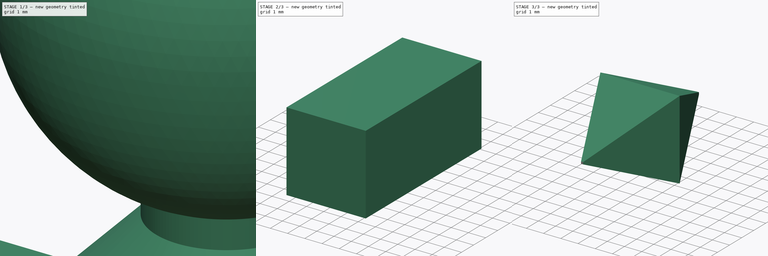
[diagram: build sequence overview — one tinted view per stage of 3, left to right]
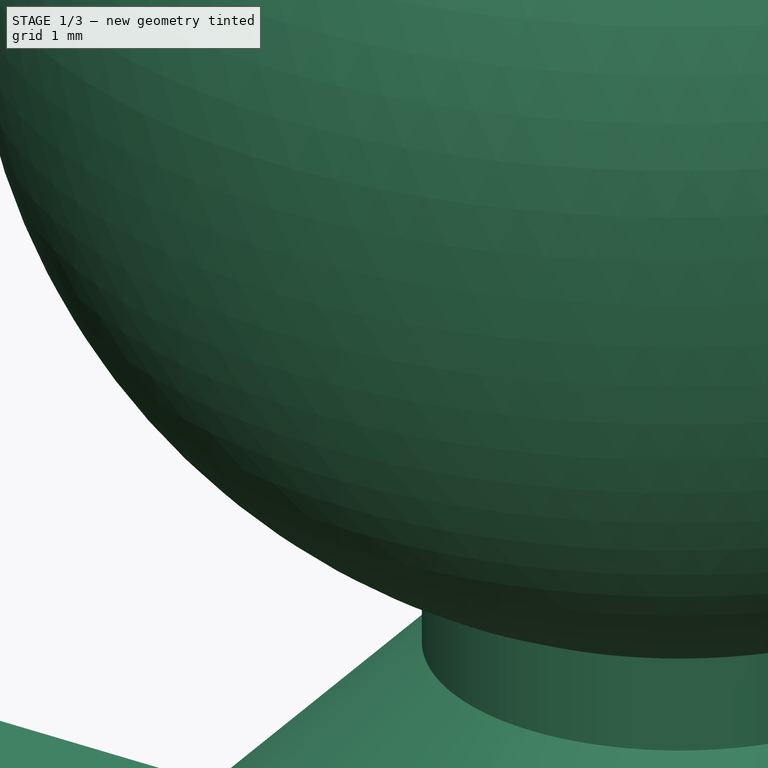
[diagram: stage 1 of 3 — iso view after this stage's code; geometry added in this stage tinted green]
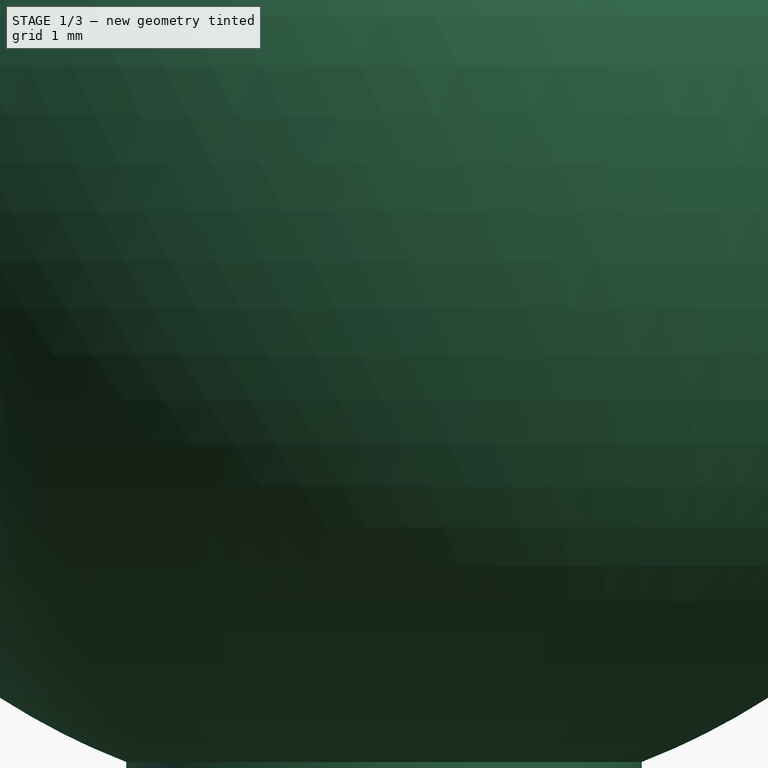
[diagram: stage 1 of 3 — front view after this stage's code; geometry added in this stage tinted green]
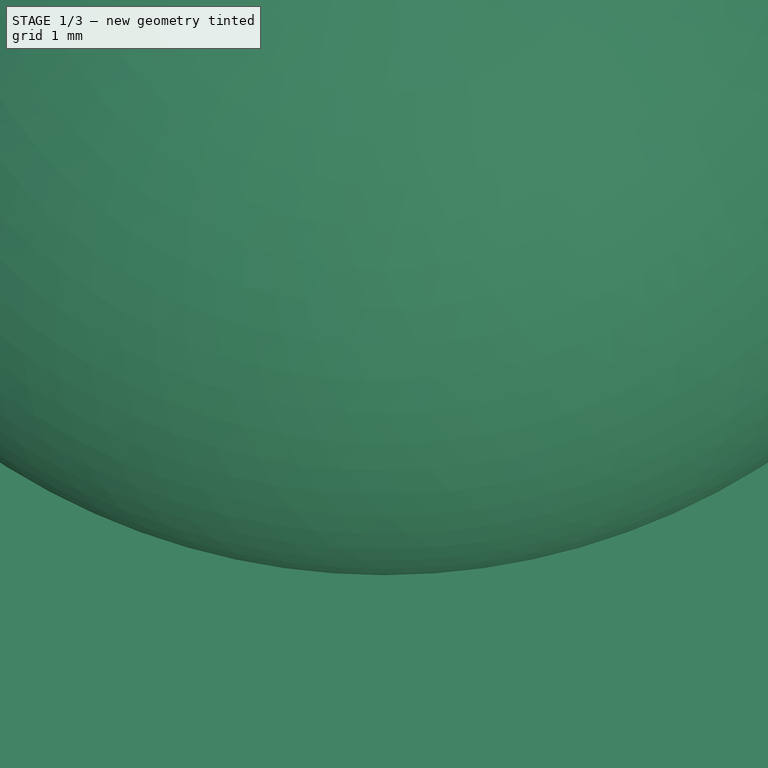
[diagram: stage 1 of 3 — top view after this stage's code; geometry added in this stage tinted green]
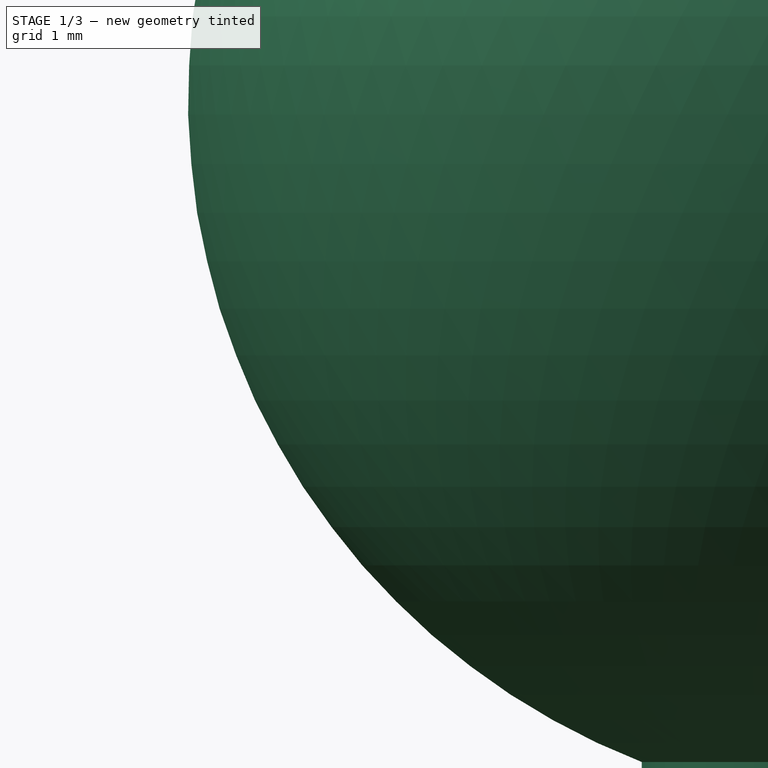
[diagram: stage 1 of 3 — right view after this stage's code; geometry added in this stage tinted green]
FCSTD DOCUMENT  (FreeCAD 1.0R39285 (Git))
Label: tripod_extension_locators
License: CERN Open Hardware Licence permissive
LicenseURL: https://cern-ohl.web.cern.ch/
objects: Sketcher::SketchObject×3, PartDesign::Draft×3, PartDesign::Body×2, PartDesign::Revolution×1, PartDesign::Pocket×1, PartDesign::SubShapeBinder×1, PartDesign::Pad×1, PartDesign::Mirrored×1
note: 29 computed .brp shape members not serialized (recipe doc carries the construction recipe); baked Part::Feature solids carry a one-line shape summary decoded from their .brp

FEATURE [Sketcher::SketchObject] Sketch
  ArcFitTolerance = 1e-06
  AttachmentSupport = -> [XZ_Plane]
  FullyConstrained = true
  MakeInternals = false
  MapMode = 5
  Placement = pos=(0,0,0) rot=(1,0,0;1.5708rad)
  sketch-geometry (11):
    g0: ArcOfCircle CenterX=0 CenterY=24.8623 CenterZ=0 NormalX=0 NormalY=0 NormalZ=1 AngleXU=0 Radius=13.8 StartAngle=1.5708 EndAngle=4.34163
    g1: LineSegment StartX=-5 StartY=12 StartZ=0 EndX=-5 EndY=10 EndZ=0
    g2: LineSegment StartX=-11 StartY=4 StartZ=0 EndX=-20 EndY=4 EndZ=0
    g3: LineSegment StartX=-20 StartY=4 StartZ=0 EndX=-20 EndY=0 EndZ=0
    g4: LineSegment StartX=-20 StartY=0 StartZ=0 EndX=0 EndY=0 EndZ=0
    g5: LineSegment StartX=8e-16 StartY=0 StartZ=0 EndX=8e-16 EndY=11.0623 EndZ=0
    g6: LineSegment StartX=8e-16 StartY=11.0623 StartZ=0 EndX=8e-16 EndY=38.6623 EndZ=0
    g7: ArcOfCircle [constr] CenterX=0 CenterY=24.8623 CenterZ=0 NormalX=0 NormalY=0 NormalZ=1 AngleXU=0 Radius=13.8 StartAngle=4.34163 EndAngle=4.71239
    g8: ArcOfCircle [constr] CenterX=-11 CenterY=10 CenterZ=0 NormalX=0 NormalY=0 NormalZ=1 AngleXU=0 Radius=6 StartAngle=4.71239 EndAngle=6.28319
    g9: GeomPoint [constr] X=-5 Y=4 Z=0
    g10: LineSegment StartX=-11 StartY=4 StartZ=0 EndX=-5 EndY=10 EndZ=0
  constraints (29):
    c: Diameter(g0) = 27.6
    c: PointOnObject(g0,g-2)
    c: Vertical(g1)
    c: Horizontal(g2)
    c: Coincident(g2,g3)
    c: Vertical(g3)
    c: Coincident(g3,g4)
    c: Horizontal(g4)
    c: Coincident(g4,g5)
    c: Vertical(g5)
    c: Coincident(g5,g6)
    c: Vertical(g6)
    c: Coincident(g0,g6)
    c: Coincident(g0,g1)
    c: DistanceY(g9,g1) = 8
    c: DistanceX(g0,g-1) = 5
    c: Distance(g3,g3) = 4
    c: Coincident(g7,g0)
    c: Coincident(g7,g5)
    c: Coincident(g7,g0)
    c: Coincident(g4,g-1)
    c: DistanceX(g4,g4) = 20
    c: PointOnObject(g9,g1)
    c: PointOnObject(g9,g2)
    c: Tangent(g1,g8) = 1.5708
    c: Tangent(g2,g8) = 1.5708
    c: Coincident(g10,g1)
    c: Coincident(g10,g2)
    c: Radius(g8) = 6
FEATURE [PartDesign::Revolution] Revolution
  Angle = 180
  Angle2 = 60
  Axis = (0,2e-16,1)
  Base = (0,0,0)
  Placement = pos=(0,0,0) rot=(1,0,0;1.5708rad)
  Profile = -> Sketch
  ReferenceAxis = -> Sketch [V_Axis]
  Refine = true
  Suppressed = false
  Type = 0
FEATURE [Sketcher::SketchObject] Sketch001
  ArcFitTolerance = 1e-06
  AttachmentSupport = -> [Revolution]
  ExternalGeometry = -> [Revolution]
  FullyConstrained = true
  MakeInternals = false
  MapMode = 5
  Placement = pos=(0,-7e-16,0) rot=(-1,0,0;1.5708rad)
  sketch-geometry (10):
    g0: LineSegment StartX=-2.5 StartY=-27.3623 StartZ=0 EndX=2.5 EndY=-27.3623 EndZ=0
    g1: LineSegment StartX=2.5 StartY=-27.3623 StartZ=0 EndX=2.5 EndY=-22.3623 EndZ=0
    g2: LineSegment StartX=2.5 StartY=-22.3623 StartZ=0 EndX=-2.5 EndY=-22.3623 EndZ=0
    g3: LineSegment StartX=-2.5 StartY=-22.3623 StartZ=0 EndX=-2.5 EndY=-27.3623 EndZ=0
    g4: GeomPoint [constr] X=0 Y=-24.8623 Z=0
    g5: LineSegment StartX=-2.5 StartY=-9 StartZ=0 EndX=2.5 EndY=-9 EndZ=0
    g6: LineSegment StartX=2.5 StartY=-9 StartZ=0 EndX=2.5 EndY=-4 EndZ=0
    g7: LineSegment StartX=2.5 StartY=-4 StartZ=0 EndX=-2.5 EndY=-4 EndZ=0
    g8: LineSegment StartX=-2.5 StartY=-4 StartZ=0 EndX=-2.5 EndY=-9 EndZ=0
    g9: GeomPoint [constr] X=0 Y=-6.5 Z=0
  constraints (25):
    c: Coincident(g0,g1)
    c: Coincident(g1,g2)
    c: Coincident(g2,g3)
    c: Coincident(g3,g0)
    c: Horizontal(g0)
    c: Horizontal(g2)
    c: Vertical(g1)
    c: Vertical(g3)
    c: Symmetric(g2,g0,g4)
    c: Coincident(g5,g6)
    c: Coincident(g6,g7)
    c: Coincident(g7,g8)
    c: Coincident(g8,g5)
    c: Horizontal(g5)
    c: Horizontal(g7)
    c: Vertical(g6)
    c: Vertical(g8)
    c: Symmetric(g7,g5,g9)
    c: Distance(g5,g7) = 5
    c: PointOnObject(g9,g-2)
    c: Equal(g8,g5)
    c: Equal(g3,g0)
    c: Equal(g3,g8)
    c: Coincident(g-3,g4)
    c: Horizontal(g7,g-4)
FEATURE [PartDesign::Pocket] Pocket
  BaseFeature = -> Revolution
  Direction = (0,-1,-2e-16)
  Length = 5
  Length2 = 5
  Placement = pos=(0,0,0) rot=(1,0,0;1.5708rad)
  Profile = -> Sketch001
  ReferenceAxis = -> Sketch001 [N_Axis]
  Refine = true
  Suppressed = false
  Type = 0
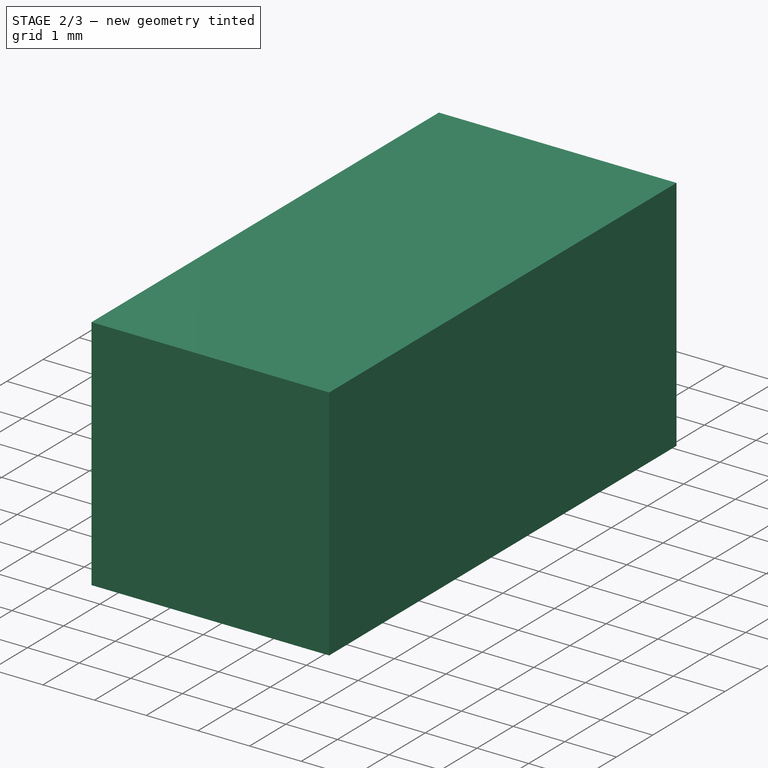
[diagram: stage 2 of 3 — iso view after this stage's code; geometry added in this stage tinted green]
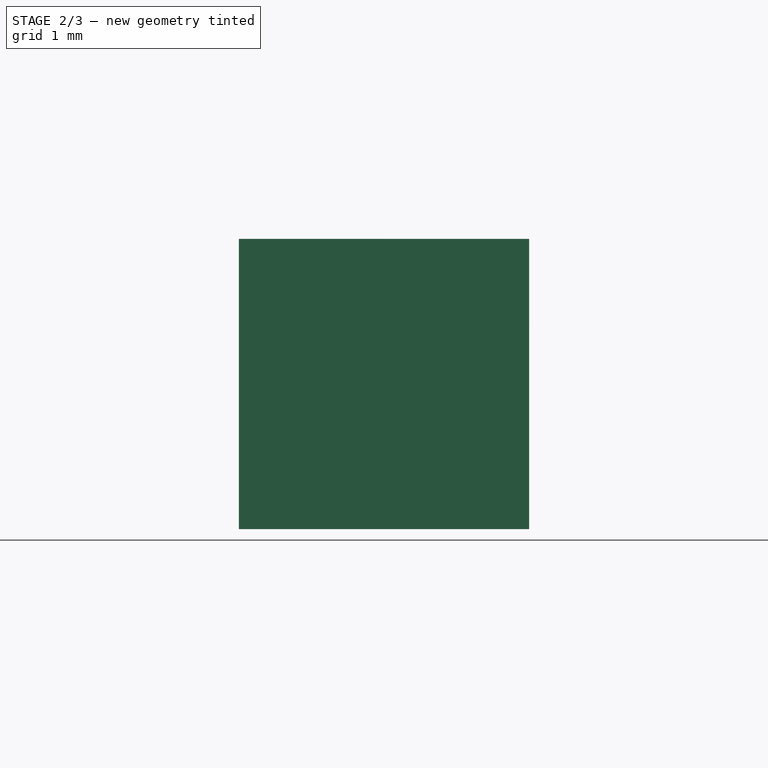
[diagram: stage 2 of 3 — front view after this stage's code; geometry added in this stage tinted green]
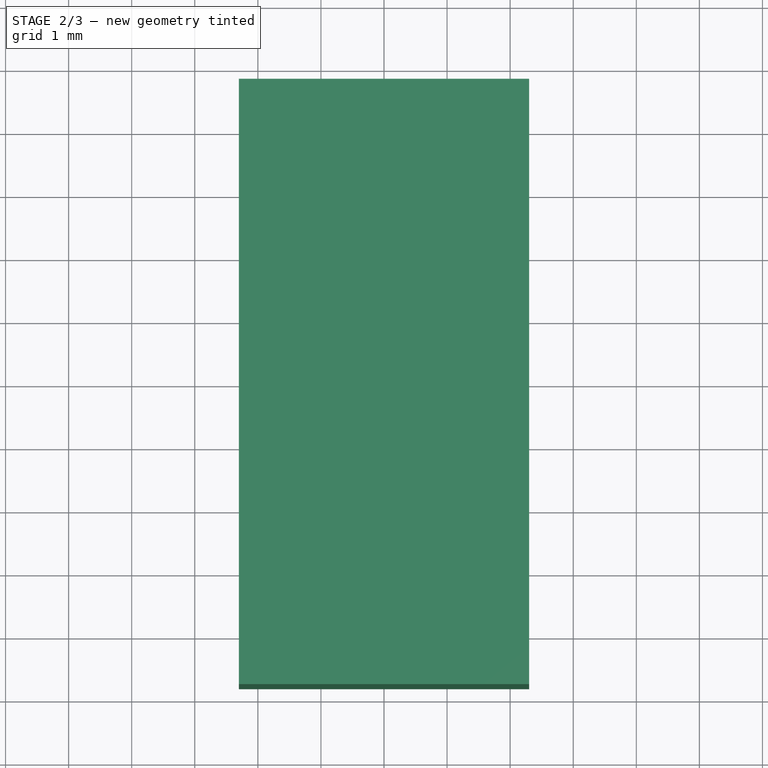
[diagram: stage 2 of 3 — top view after this stage's code; geometry added in this stage tinted green]
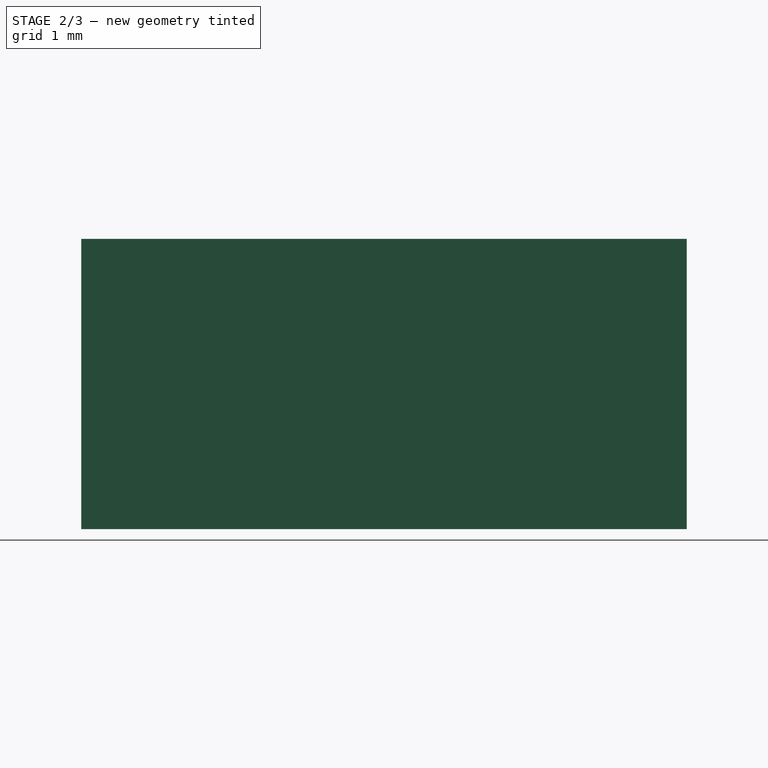
[diagram: stage 2 of 3 — right view after this stage's code; geometry added in this stage tinted green]
FEATURE [PartDesign::Draft] Draft
  Angle = 25
  Base = -> Pocket [Face12,Face13,Face14,Face15,Face8,Face9,Face11,Face10]
  BaseFeature = -> Pocket
  NeutralPlane = -> Pocket [Face4]
  Placement = pos=(0,0,0) rot=(1,0,0;1.5708rad)
  Refine = true
  SupportTransform = false
  Suppressed = false
FEATURE [PartDesign::Body] Body
  AllowCompound = false
  Group = -> [Sketch,Revolution,Sketch001,Pocket,Draft]
  Origin = -> Origin
  Tip = -> Draft
FEATURE [PartDesign::SubShapeBinder] Binder
  BindCopyOnChange = 0
  BindMode = 0
  ClaimChildren = false
  Context = -> Body001 [Binder.]
  Fuse = false
  MakeFace = true
  OffsetFill = false
  OffsetIntersection = false
  OffsetJoinType = 0
  OffsetOpenResult = false
  PartialLoad = false
  Refine = true
  Relative = true
  Support = -> [Body]
  _Version = 2
FEATURE [Sketcher::SketchObject] Sketch002
  ArcFitTolerance = 1e-06
  AttachmentSupport = -> [Binder]
  ExternalGeometry = -> [Binder]
  FullyConstrained = true
  MakeInternals = false
  MapMode = 5
  Placement = pos=(0,-7e-16,0) rot=(0,0.707107,0.707107;3.14159rad)
  sketch-geometry (7):
    g0: LineSegment StartX=2.3 StartY=22.5623 StartZ=0 EndX=2.3 EndY=27.1623 EndZ=0
    g1: LineSegment StartX=2.3 StartY=27.1623 StartZ=0 EndX=-2.3 EndY=27.1623 EndZ=0
    g2: LineSegment StartX=-2.3 StartY=27.1623 StartZ=0 EndX=-2.3 EndY=22.5623 EndZ=0
    g3: LineSegment StartX=-2.3 StartY=22.5623 StartZ=0 EndX=2.3 EndY=22.5623 EndZ=0
    g4: GeomPoint [constr] X=0 Y=24.8623 Z=0
    g5: LineSegment [constr] StartX=-2.3 StartY=27.1623 StartZ=0 EndX=-2.3 EndY=27.3623 EndZ=0
    g6: LineSegment [constr] StartX=-2.3 StartY=27.1623 StartZ=0 EndX=-2.5 EndY=27.1623 EndZ=0
  constraints (19):
    c: Coincident(g0,g1)
    c: Coincident(g1,g2)
    c: Coincident(g2,g3)
    c: Coincident(g3,g0)
    c: Vertical(g0)
    c: Vertical(g2)
    c: Horizontal(g1)
    c: Horizontal(g3)
    c: Symmetric(g2,g0,g4)
    c: PointOnObject(g4,g-2)
    c: Equal(g1,g2)
    c: Coincident(g5,g1)
    c: PointOnObject(g5,g-3)
    c: Vertical(g5)
    c: Coincident(g6,g1)
    c: Horizontal(g6)
    c: PointOnObject(g6,g-5)
    c: Equal(g6,g5)
    c: DistanceY(g5,g5) = 0.2
FEATURE [PartDesign::Pad] Pad
  Direction = (0,1,-2e-16)
  Length = 4.8
  Length2 = 10
  Profile = -> Sketch002
  ReferenceAxis = -> Sketch002 [N_Axis]
  Refine = true
  Reversed = true
  Suppressed = false
  Type = 0
FEATURE [PartDesign::Mirrored] Mirrored
  BaseFeature = -> Pad
  MirrorPlane = -> XZ_Plane001
  Originals = -> [Pad]
  Suppressed = false
  TransformMode = 0
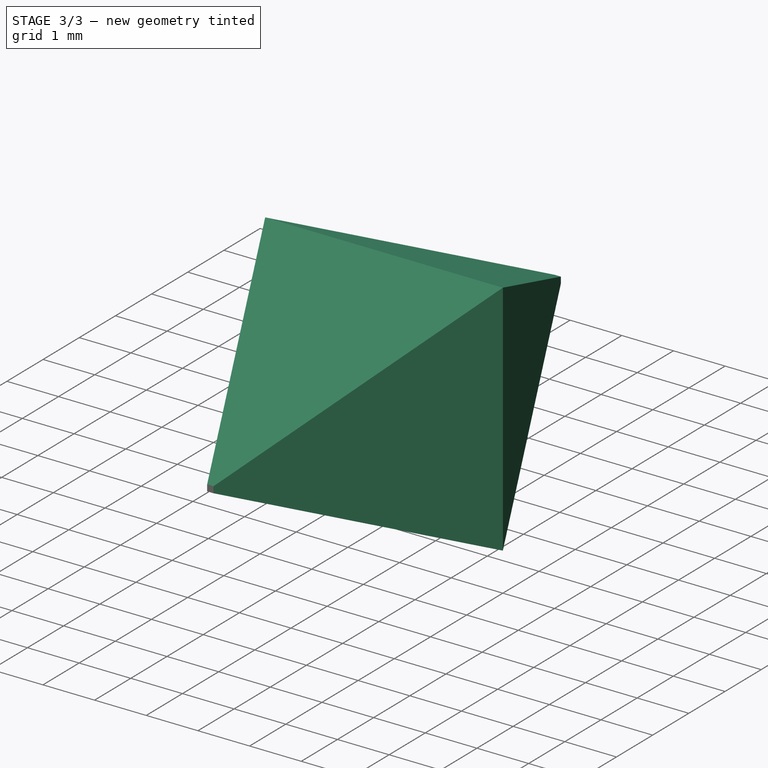
[diagram: stage 3 of 3 — iso view after this stage's code; geometry added in this stage tinted green]
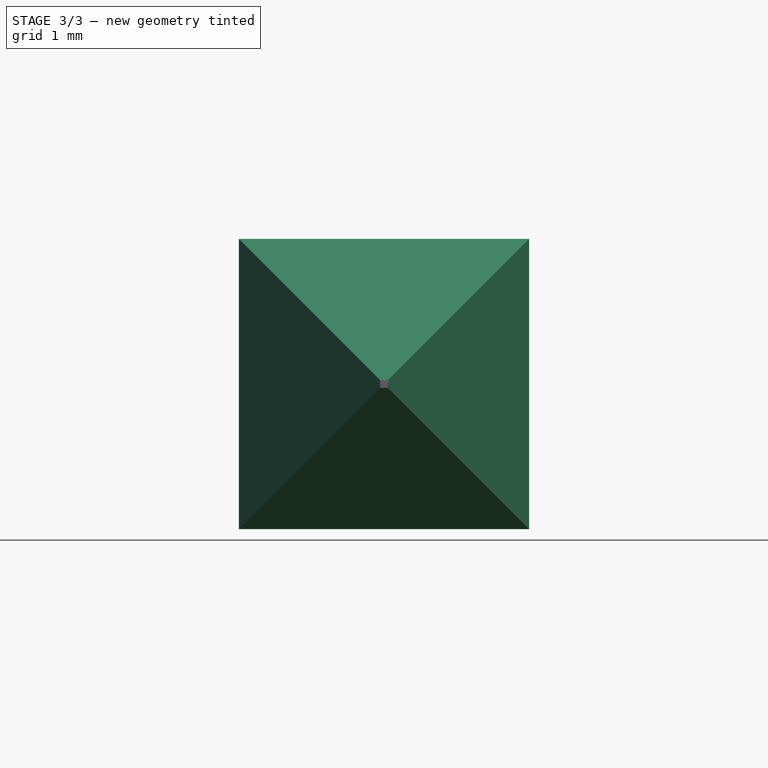
[diagram: stage 3 of 3 — front view after this stage's code; geometry added in this stage tinted green]
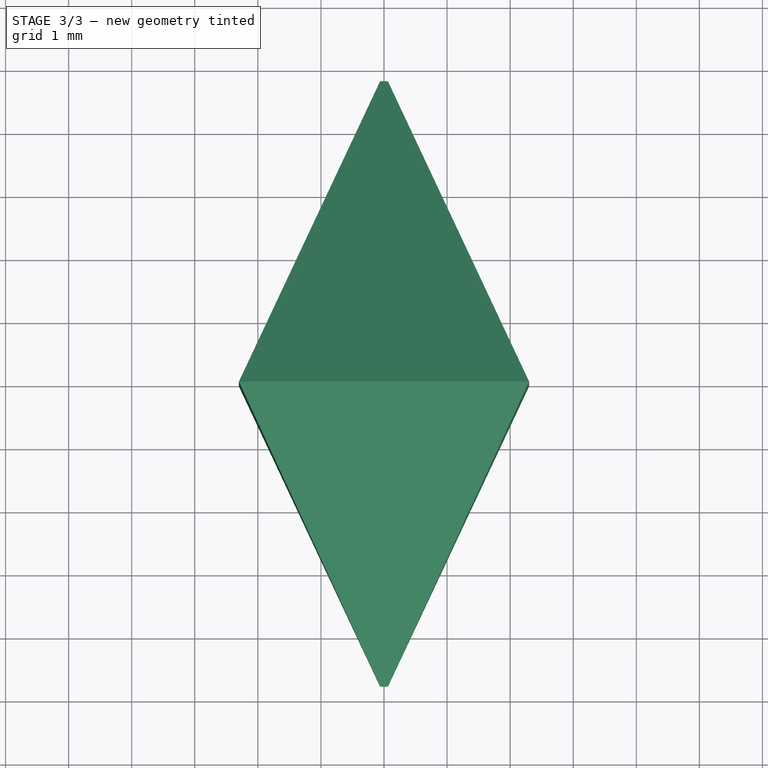
[diagram: stage 3 of 3 — top view after this stage's code; geometry added in this stage tinted green]
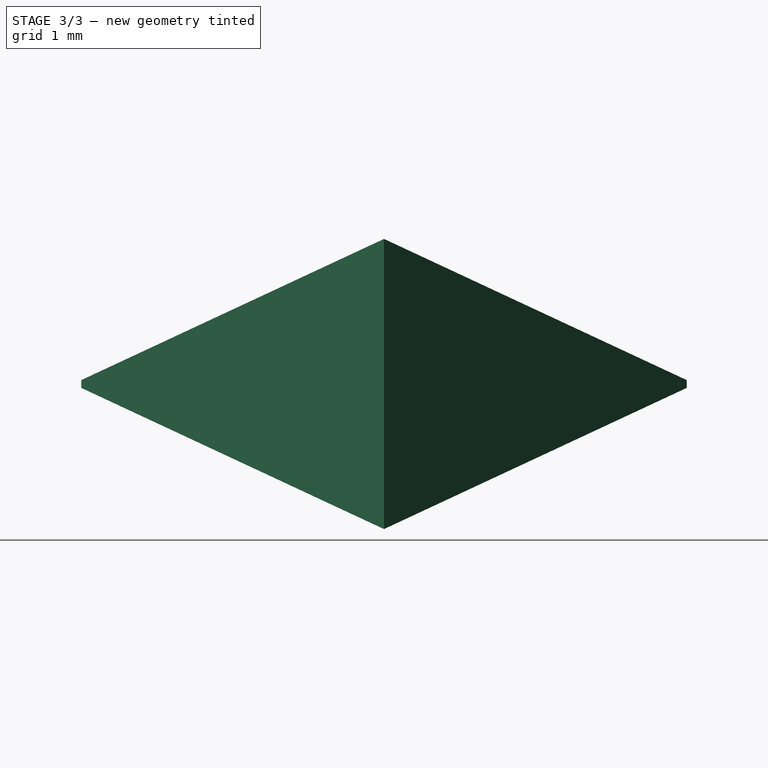
[diagram: stage 3 of 3 — right view after this stage's code; geometry added in this stage tinted green]
FEATURE [PartDesign::Draft] Draft001
  Angle = 25
  Base = -> Mirrored [Face2,Face6,Face3,Face1]
  BaseFeature = -> Mirrored
  NeutralPlane = -> Pad [Face5]
  Refine = true
  Reversed = true
  SupportTransform = false
  Suppressed = false
FEATURE [PartDesign::Draft] Draft002
  Angle = 25
  Base = -> Draft001 [Face8,Face10,Face7,Face4]
  BaseFeature = -> Draft001
  NeutralPlane = -> Pad [Face5]
  Refine = true
  SupportTransform = false
  Suppressed = false
FEATURE [PartDesign::Body] Body001
  AllowCompound = false
  Group = -> [Binder,Sketch002,Pad,Mirrored,Draft001,Draft002]
  Origin = -> Origin001
  Tip = -> Draft002
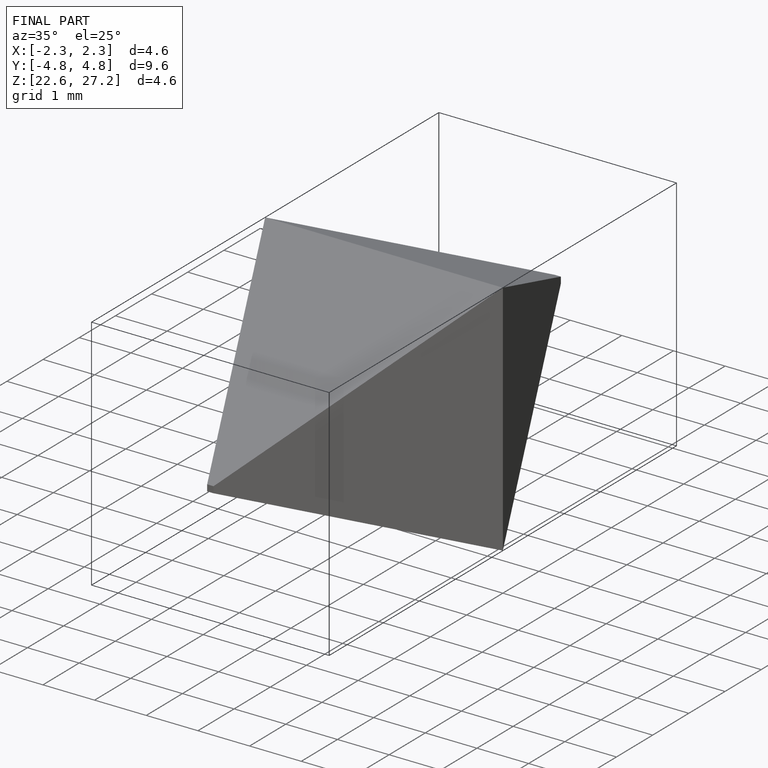
[diagram: finished part — iso view with bounding-box wireframe]
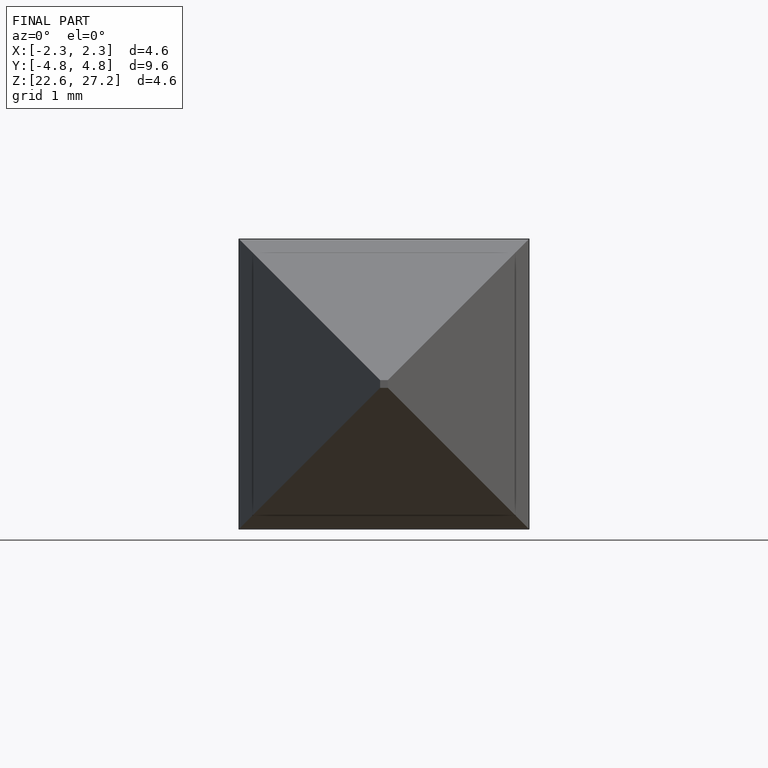
[diagram: finished part — front view with bounding-box wireframe]
